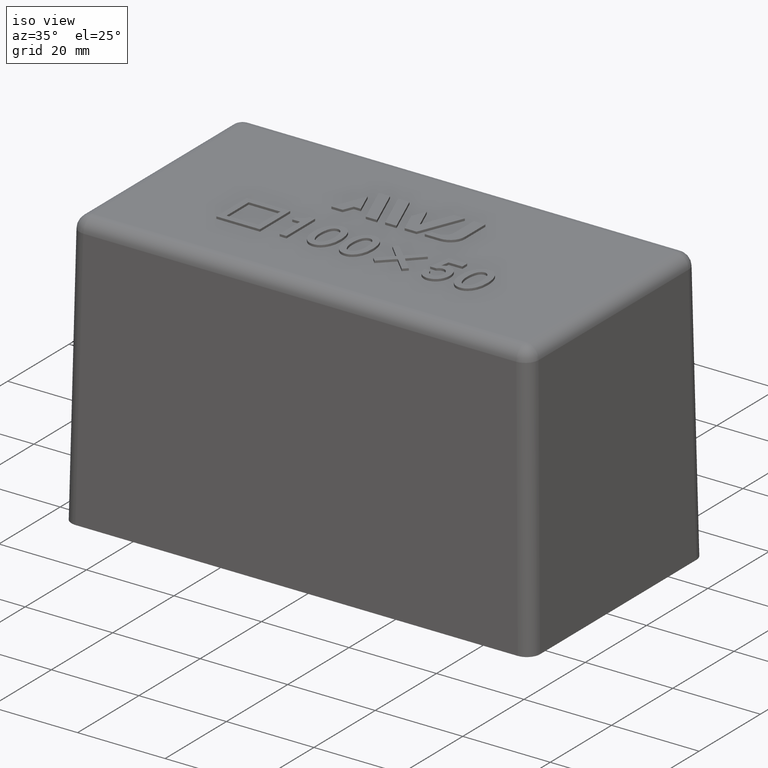
[diagram: clean part render]
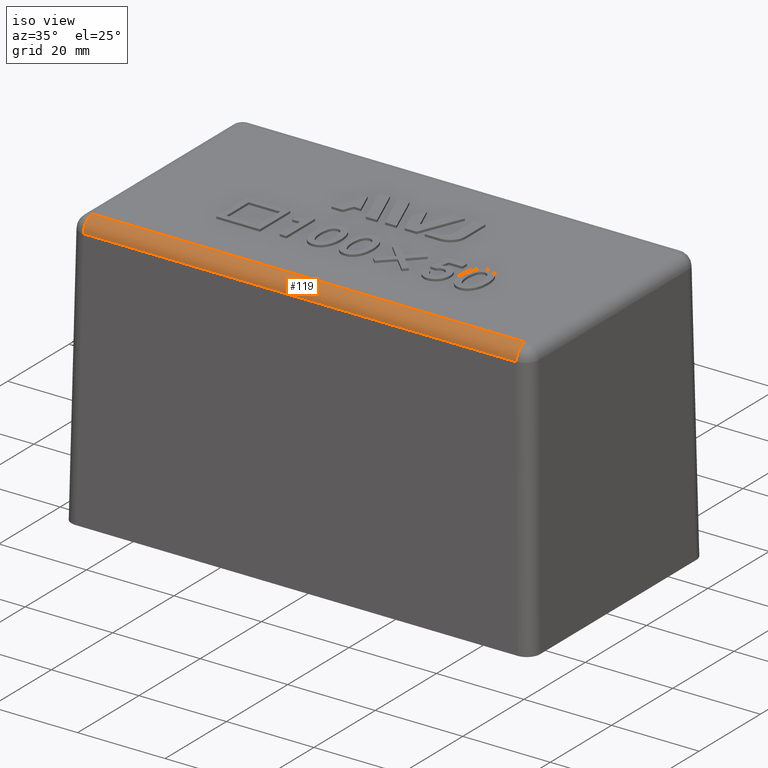
[diagram: same view with one face highlighted and labeled with its STEP entity id]
A machine part, iso view. The second image highlights one B-rep face of the part: STEP entity #119.
In plain terms, the highlighted cylindrical surface (edge-blend (fillet) strip) has radius 3 mm, axis along (-1, 0, 0).
Its self-contained STEP definition (entity closure, byte-faithful):
#119 = ADVANCED_FACE( '', ( #298 ), #299, .T. );
#298 = FACE_OUTER_BOUND( '', #557, .T. );
#299 = CYLINDRICAL_SURFACE( '', #558, 3.00000000000000 );
#557 = EDGE_LOOP( '', ( #1170, #1171, #1172, #1173 ) );
#558 = AXIS2_PLACEMENT_3D( '', #1174, #1175, #1176 );
#1170 = ORIENTED_EDGE( '', *, *, #1836, .F. );
#1171 = ORIENTED_EDGE( '', *, *, #1841, .F. );
#1172 = ORIENTED_EDGE( '', *, *, #1837, .F. );
#1173 = ORIENTED_EDGE( '', *, *, #1735, .F. );
#1174 = CARTESIAN_POINT( '', ( -53.0000000000000, -24.4758910680218, 60.0000000000000 ) );
#1175 = DIRECTION( '', ( -1.00000000000000, 0.000000000000000, 0.000000000000000 ) );
#1176 = DIRECTION( '', ( 0.000000000000000, 0.000000000000000, -1.00000000000000 ) );
#1735 = EDGE_CURVE( '', #2046, #2041, #2048, .F. );
#1836 = EDGE_CURVE( '', #2218, #2046, #2220, .T. );
#1837 = EDGE_CURVE( '', #2041, #2221, #2222, .T. );
#1841 = EDGE_CURVE( '', #2221, #2218, #2227, .F. );
#2041 = VERTEX_POINT( '', #2576 );
#2046 = VERTEX_POINT( '', #2583 );
#2048 = LINE( '', #2586, #2587 );
#2218 = VERTEX_POINT( '', #3078 );
#2220 = CIRCLE( '', #3080, 3.00000000000000 );
#2221 = VERTEX_POINT( '', #3081 );
#2222 = CIRCLE( '', #3082, 3.00000000000000 );
#2227 = LINE( '', #3088, #3089 );
#2576 = CARTESIAN_POINT( '', ( 49.4758910680218, -24.4758910680218, 63.0000000000000 ) );
#2583 = CARTESIAN_POINT( '', ( -49.4758910680218, -24.4758910680218, 63.0000000000000 ) );
#2586 = CARTESIAN_POINT( '', ( 52.4239828573688, -24.4758910680218, 63.0000000000000 ) );
#2587 = VECTOR( '', #3399, 1000.00000000000 );
#3078 = CARTESIAN_POINT( '', ( -49.4758910680218, -27.4754341534909, 60.0523572193119 ) );
#3080 = AXIS2_PLACEMENT_3D( '', #3466, #3467, #3468 );
#3081 = CARTESIAN_POINT( '', ( 49.4758910680218, -27.4754341534909, 60.0523572193119 ) );
#3082 = AXIS2_PLACEMENT_3D( '', #3469, #3470, #3471 );
#3088 = CARTESIAN_POINT( '', ( -52.4239828573688, -27.4754341534909, 60.0523572193119 ) );
#3089 = VECTOR( '', #3479, 1000.00000000000 );
#3399 = DIRECTION( '', ( -1.00000000000000, 0.000000000000000, 0.000000000000000 ) );
#3466 = CARTESIAN_POINT( '', ( -49.4758910680218, -24.4758910680218, 60.0000000000000 ) );
#3467 = DIRECTION( '', ( -1.00000000000000, 0.000000000000000, 0.000000000000000 ) );
#3468 = DIRECTION( '', ( 0.000000000000000, 0.000000000000000, 1.00000000000000 ) );
#3469 = CARTESIAN_POINT( '', ( 49.4758910680218, -24.4758910680218, 60.0000000000000 ) );
#3470 = DIRECTION( '', ( 1.00000000000000, -4.62663392802833E-015, 0.000000000000000 ) );
#3471 = DIRECTION( '', ( 4.62663392802833E-015, 1.00000000000000, 0.000000000000000 ) );
#3479 = DIRECTION( '', ( 1.00000000000000, 0.000000000000000, 0.000000000000000 ) );